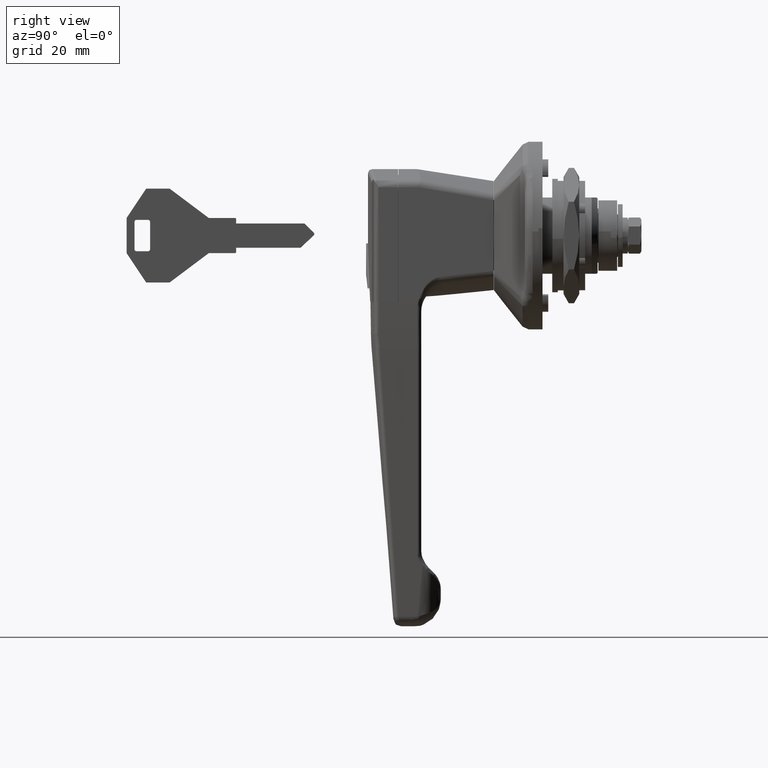
[diagram: clean part render]
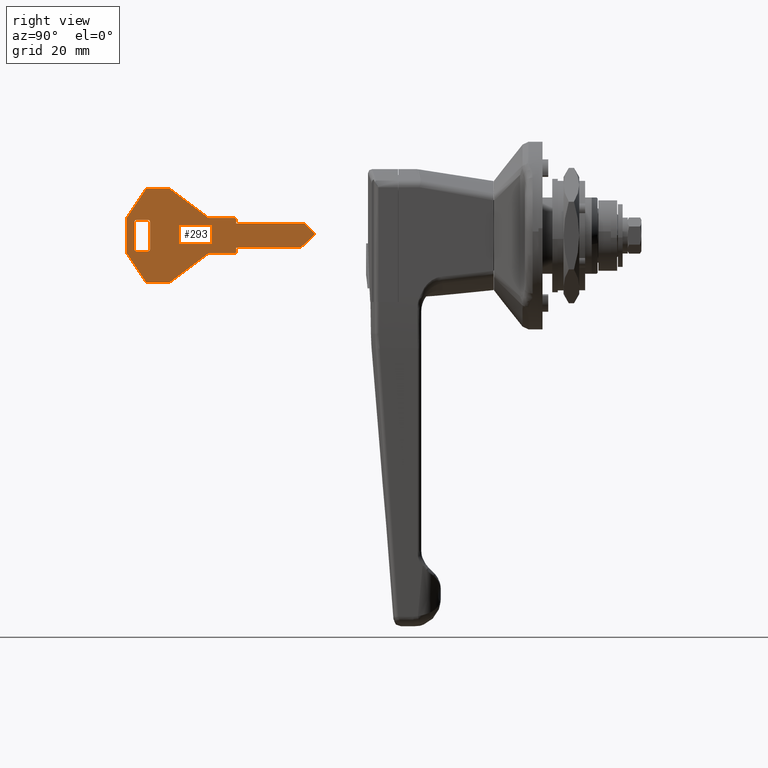
[diagram: same view with one face highlighted and labeled with its STEP entity id]
A machine part, right view. The second image highlights one B-rep face of the part: STEP entity #293.
In plain terms, the highlighted face is a freeform B-spline surface patch.
Its self-contained STEP definition (entity closure, byte-faithful):
#44=CARTESIAN_POINT('',(-103.733763654037300,-0.900000000000000,13.198799953483350));
#45=CARTESIAN_POINT('',(-50.938627942001659,-0.900000000000000,13.198799953483350));
#46=CARTESIAN_POINT('',(-103.733763654037300,-0.900000000000000,-13.198800597213509));
#47=CARTESIAN_POINT('',(-50.938627942001659,-0.900000000000000,-13.198800597213509));
#48=B_SPLINE_SURFACE_WITH_KNOTS('',1,1,((#44,#46),(#45,#47)),.UNSPECIFIED.,.F.,.F.,.U.,(2,2),(2,2),(0.0,52.795135712035659),(0.0,26.397600550696851),.UNSPECIFIED.);
#49=CARTESIAN_POINT('',(-101.336164999999990,-0.900000000000012,4.500000582522990));
#50=VERTEX_POINT('',#49);
#51=CARTESIAN_POINT('',(-96.336164569421712,-0.900000000000012,12.0));
#52=VERTEX_POINT('',#51);
#53=CARTESIAN_POINT('',(-101.336164999999990,-0.900000000000012,4.500000582522990));
#54=CARTESIAN_POINT('',(-96.336164569421712,-0.900000000000012,12.0));
#55=QUASI_UNIFORM_CURVE('',1,(#53,#54),.UNSPECIFIED.,.F.,.U.);
#56=EDGE_CURVE('',#50,#52,#55,.T.);
#57=ORIENTED_EDGE('',*,*,#56,.F.);
#58=CARTESIAN_POINT('',(-101.336164999999990,-0.900000000000012,-4.500000582522980));
#59=VERTEX_POINT('',#58);
#60=CARTESIAN_POINT('',(-101.336164999999990,-0.900000000000012,-4.500000582522980));
#61=CARTESIAN_POINT('',(-101.336164999999990,-0.900000000000012,4.500000582522990));
#62=QUASI_UNIFORM_CURVE('',1,(#60,#61),.UNSPECIFIED.,.F.,.U.);
#63=EDGE_CURVE('',#59,#50,#62,.T.);
#64=ORIENTED_EDGE('',*,*,#63,.F.);
#65=CARTESIAN_POINT('',(-96.336164569421712,-0.900000000000012,-12.0));
#66=VERTEX_POINT('',#65);
#67=CARTESIAN_POINT('',(-96.336164569421712,-0.900000000000012,-12.0));
#68=CARTESIAN_POINT('',(-101.336164999999990,-0.900000000000012,-4.500000582522980));
#69=QUASI_UNIFORM_CURVE('',1,(#67,#68),.UNSPECIFIED.,.F.,.U.);
#70=EDGE_CURVE('',#66,#59,#69,.T.);
#71=ORIENTED_EDGE('',*,*,#70,.F.);
#72=CARTESIAN_POINT('',(-90.336165352112701,-0.900000000000012,-12.0));
#73=VERTEX_POINT('',#72);
#74=CARTESIAN_POINT('',(-90.336165352112701,-0.900000000000012,-12.0));
#75=CARTESIAN_POINT('',(-96.336164569421712,-0.900000000000012,-12.0));
#76=QUASI_UNIFORM_CURVE('',1,(#74,#75),.UNSPECIFIED.,.F.,.U.);
#77=EDGE_CURVE('',#73,#66,#76,.T.);
#78=ORIENTED_EDGE('',*,*,#77,.F.);
#79=CARTESIAN_POINT('',(-80.336164999999909,-0.900000000000012,-4.500000000000000));
#80=VERTEX_POINT('',#79);
#81=CARTESIAN_POINT('',(-80.336164999999909,-0.900000000000012,-4.500000000000000));
#82=CARTESIAN_POINT('',(-90.336165352112701,-0.900000000000012,-12.0));
#83=QUASI_UNIFORM_CURVE('',1,(#81,#82),.UNSPECIFIED.,.F.,.U.);
#84=EDGE_CURVE('',#80,#73,#83,.T.);
#85=ORIENTED_EDGE('',*,*,#84,.F.);
#86=CARTESIAN_POINT('',(-73.636164999999892,-0.900000000000012,-4.500000000000000));
#87=VERTEX_POINT('',#86);
#88=CARTESIAN_POINT('',(-73.636164999999892,-0.900000000000012,-4.500000000000000));
#89=CARTESIAN_POINT('',(-80.336164999999909,-0.900000000000012,-4.500000000000000));
#90=QUASI_UNIFORM_CURVE('',1,(#88,#89),.UNSPECIFIED.,.F.,.U.);
#91=EDGE_CURVE('',#87,#80,#90,.T.);
#92=ORIENTED_EDGE('',*,*,#91,.F.);
#93=CARTESIAN_POINT('',(-73.336164999999895,-0.900000000000012,-4.200000000000045));
#94=VERTEX_POINT('',#93);
#95=CARTESIAN_POINT('',(-73.636164999999892,-0.900000000000012,-4.500000000000044));
#96=CARTESIAN_POINT('',(-73.336164999999895,-0.900000000000012,-4.500000000000044));
#97=CARTESIAN_POINT('',(-73.336164999999895,-0.900000000000012,-4.200000000000045));
#105=(BOUNDED_CURVE()B_SPLINE_CURVE(2,(#95,#96,#97),.UNSPECIFIED.,.F.,.U.)CURVE()GEOMETRIC_REPRESENTATION_ITEM()QUASI_UNIFORM_CURVE()RATIONAL_B_SPLINE_CURVE((1.0,0.707106781186547,1.0))REPRESENTATION_ITEM(''));
#106=EDGE_CURVE('',#87,#94,#105,.T.);
#107=ORIENTED_EDGE('',*,*,#106,.T.);
#108=CARTESIAN_POINT('',(-73.336164999999895,-0.900000000000012,-3.100000000000000));
#109=VERTEX_POINT('',#108);
#110=CARTESIAN_POINT('',(-73.336164999999895,-0.900000000000012,-3.100000000000000));
#111=CARTESIAN_POINT('',(-73.336164999999895,-0.900000000000012,-4.200000000000045));
#112=QUASI_UNIFORM_CURVE('',1,(#110,#111),.UNSPECIFIED.,.F.,.U.);
#113=EDGE_CURVE('',#109,#94,#112,.T.);
#114=ORIENTED_EDGE('',*,*,#113,.F.);
#115=CARTESIAN_POINT('',(-56.836164999999902,-0.900000000000012,-3.100000000000000));
#116=VERTEX_POINT('',#115);
#117=CARTESIAN_POINT('',(-56.836164999999902,-0.900000000000012,-3.100000000000000));
#118=CARTESIAN_POINT('',(-73.336164999999895,-0.900000000000012,-3.100000000000000));
#119=QUASI_UNIFORM_CURVE('',1,(#117,#118),.UNSPECIFIED.,.F.,.U.);
#120=EDGE_CURVE('',#116,#109,#119,.T.);
#121=ORIENTED_EDGE('',*,*,#120,.F.);
#122=CARTESIAN_POINT('',(-53.494070531371797,-0.900000000000012,0.035347597657623));
#123=VERTEX_POINT('',#122);
#124=CARTESIAN_POINT('',(-53.494070531371797,-0.900000000000012,0.035347597657623));
#125=CARTESIAN_POINT('',(-56.836164999999902,-0.900000000000012,-3.100000000000000));
#126=QUASI_UNIFORM_CURVE('',1,(#124,#125),.UNSPECIFIED.,.F.,.U.);
#127=EDGE_CURVE('',#123,#116,#126,.T.);
#128=ORIENTED_EDGE('',*,*,#127,.F.);
#129=CARTESIAN_POINT('',(-53.483146999999903,-0.900000000000012,0.754087999999854));
#130=VERTEX_POINT('',#129);
#131=CARTESIAN_POINT('',(-53.494070531371790,-0.900000000000012,0.035347597657615));
#132=CARTESIAN_POINT('',(-53.339444645979249,-0.900000000000012,0.180408098451601));
#133=CARTESIAN_POINT('',(-53.336222735864631,-0.900000000000012,0.392401807365908));
#134=CARTESIAN_POINT('',(-53.333000825750013,-0.900000000000012,0.604395516280215));
#135=CARTESIAN_POINT('',(-53.483146999999903,-0.900000000000012,0.754087999999854));
#143=(BOUNDED_CURVE()B_SPLINE_CURVE(2,(#131,#132,#133,#134,#135),.UNSPECIFIED.,.F.,.U.)B_SPLINE_CURVE_WITH_KNOTS((3,2,3),(0.0,0.500000000000000,1.0),.UNSPECIFIED.)CURVE()GEOMETRIC_REPRESENTATION_ITEM()RATIONAL_B_SPLINE_CURVE((1.0,0.920649968654274,1.0,0.920649968654274,1.0))REPRESENTATION_ITEM(''));
#144=EDGE_CURVE('',#123,#130,#143,.T.);
#145=ORIENTED_EDGE('',*,*,#144,.T.);
#146=CARTESIAN_POINT('',(-55.836164999999902,-0.900000000000012,3.099999999999850));
#147=VERTEX_POINT('',#146);
#148=CARTESIAN_POINT('',(-55.836164999999902,-0.900000000000012,3.099999999999850));
#149=CARTESIAN_POINT('',(-53.483146999999903,-0.900000000000012,0.754087999999854));
#150=QUASI_UNIFORM_CURVE('',1,(#148,#149),.UNSPECIFIED.,.F.,.U.);
#151=EDGE_CURVE('',#147,#130,#150,.T.);
#152=ORIENTED_EDGE('',*,*,#151,.F.);
#153=CARTESIAN_POINT('',(-73.336164999999895,-0.900000000000012,3.099999999999850));
#154=VERTEX_POINT('',#153);
#155=CARTESIAN_POINT('',(-73.336164999999895,-0.900000000000012,3.099999999999850));
#156=CARTESIAN_POINT('',(-55.836164999999902,-0.900000000000012,3.099999999999850));
#157=QUASI_UNIFORM_CURVE('',1,(#155,#156),.UNSPECIFIED.,.F.,.U.);
#158=EDGE_CURVE('',#154,#147,#157,.T.);
#159=ORIENTED_EDGE('',*,*,#158,.F.);
#160=CARTESIAN_POINT('',(-73.336164999999895,-0.900000000000012,4.199999999999760));
#161=VERTEX_POINT('',#160);
#162=CARTESIAN_POINT('',(-73.336164999999895,-0.900000000000012,4.199999999999760));
#163=CARTESIAN_POINT('',(-73.336164999999895,-0.900000000000012,3.099999999999850));
#164=QUASI_UNIFORM_CURVE('',1,(#162,#163),.UNSPECIFIED.,.F.,.U.);
#165=EDGE_CURVE('',#161,#154,#164,.T.);
#166=ORIENTED_EDGE('',*,*,#165,.F.);
#167=CARTESIAN_POINT('',(-73.636164999999892,-0.900000000000012,4.499999999999885));
#168=VERTEX_POINT('',#167);
#169=CARTESIAN_POINT('',(-73.336164999999895,-0.900000000000012,4.199999999999760));
#170=CARTESIAN_POINT('',(-73.336164999999895,-0.900000000000012,4.499999999999758));
#171=CARTESIAN_POINT('',(-73.636164999999892,-0.900000000000012,4.499999999999759));
#179=(BOUNDED_CURVE()B_SPLINE_CURVE(2,(#169,#170,#171),.UNSPECIFIED.,.F.,.U.)CURVE()GEOMETRIC_REPRESENTATION_ITEM()QUASI_UNIFORM_CURVE()RATIONAL_B_SPLINE_CURVE((1.0,0.707106781186547,1.0))REPRESENTATION_ITEM(''));
#180=EDGE_CURVE('',#161,#168,#179,.T.);
#181=ORIENTED_EDGE('',*,*,#180,.T.);
#182=CARTESIAN_POINT('',(-80.336164999999909,-0.900000000000012,4.499999999999885));
#183=VERTEX_POINT('',#182);
#184=CARTESIAN_POINT('',(-80.336164999999909,-0.900000000000012,4.499999999999885));
#185=CARTESIAN_POINT('',(-73.636164999999892,-0.900000000000012,4.499999999999885));
#186=QUASI_UNIFORM_CURVE('',1,(#184,#185),.UNSPECIFIED.,.F.,.U.);
#187=EDGE_CURVE('',#183,#168,#186,.T.);
#188=ORIENTED_EDGE('',*,*,#187,.F.);
#189=CARTESIAN_POINT('',(-90.336165352112786,-0.900000000000012,12.0));
#190=VERTEX_POINT('',#189);
#191=CARTESIAN_POINT('',(-90.336165352112786,-0.900000000000012,12.0));
#192=CARTESIAN_POINT('',(-80.336164999999909,-0.900000000000012,4.499999999999885));
#193=QUASI_UNIFORM_CURVE('',1,(#191,#192),.UNSPECIFIED.,.F.,.U.);
#194=EDGE_CURVE('',#190,#183,#193,.T.);
#195=ORIENTED_EDGE('',*,*,#194,.F.);
#196=CARTESIAN_POINT('',(-96.336164569421712,-0.900000000000012,12.0));
#197=CARTESIAN_POINT('',(-90.336165352112786,-0.900000000000012,12.0));
#198=QUASI_UNIFORM_CURVE('',1,(#196,#197),.UNSPECIFIED.,.F.,.U.);
#199=EDGE_CURVE('',#52,#190,#198,.T.);
#200=ORIENTED_EDGE('',*,*,#199,.F.);
#201=EDGE_LOOP('',(#57,#64,#71,#78,#85,#92,#107,#114,#121,#128,#145,#152,#159,#166,#181,#188,#195,#200));
#202=FACE_OUTER_BOUND('',#201,.T.);
#203=CARTESIAN_POINT('',(-98.836164999999895,-0.900000000000012,4.0));
#204=VERTEX_POINT('',#203);
#205=CARTESIAN_POINT('',(-95.836164999999909,-0.900000000000012,4.0));
#206=VERTEX_POINT('',#205);
#207=CARTESIAN_POINT('',(-98.836164999999895,-0.900000000000012,4.0));
#208=CARTESIAN_POINT('',(-95.836164999999909,-0.900000000000012,4.0));
#209=QUASI_UNIFORM_CURVE('',1,(#207,#208),.UNSPECIFIED.,.F.,.U.);
#210=EDGE_CURVE('',#204,#206,#209,.T.);
#211=ORIENTED_EDGE('',*,*,#210,.T.);
#212=CARTESIAN_POINT('',(-95.336164999999909,-0.900000000000012,3.500000000000000));
#213=VERTEX_POINT('',#212);
#214=CARTESIAN_POINT('',(-95.336164999999909,-0.900000000000012,3.500000000000000));
#215=CARTESIAN_POINT('',(-95.336164999999923,-0.900000000000012,4.000000000000000));
#216=CARTESIAN_POINT('',(-95.836164999999909,-0.900000000000012,4.0));
#224=(BOUNDED_CURVE()B_SPLINE_CURVE(2,(#214,#215,#216),.UNSPECIFIED.,.F.,.U.)CURVE()GEOMETRIC_REPRESENTATION_ITEM()QUASI_UNIFORM_CURVE()RATIONAL_B_SPLINE_CURVE((1.0,0.707106781186548,1.0))REPRESENTATION_ITEM(''));
#225=EDGE_CURVE('',#213,#206,#224,.T.);
#226=ORIENTED_EDGE('',*,*,#225,.F.);
#227=CARTESIAN_POINT('',(-95.336164999999909,-0.900000000000012,-3.500000000000000));
#228=VERTEX_POINT('',#227);
#229=CARTESIAN_POINT('',(-95.336164999999909,-0.900000000000012,3.500000000000000));
#230=CARTESIAN_POINT('',(-95.336164999999909,-0.900000000000012,-3.500000000000000));
#231=QUASI_UNIFORM_CURVE('',1,(#229,#230),.UNSPECIFIED.,.F.,.U.);
#232=EDGE_CURVE('',#213,#228,#231,.T.);
#233=ORIENTED_EDGE('',*,*,#232,.T.);
#234=CARTESIAN_POINT('',(-95.836164999999909,-0.900000000000012,-4.0));
#235=VERTEX_POINT('',#234);
#236=CARTESIAN_POINT('',(-95.836164999999909,-0.900000000000012,-4.0));
#237=CARTESIAN_POINT('',(-95.336164999999923,-0.900000000000012,-4.000000000000000));
#238=CARTESIAN_POINT('',(-95.336164999999909,-0.900000000000012,-3.500000000000000));
#246=(BOUNDED_CURVE()B_SPLINE_CURVE(2,(#236,#237,#238),.UNSPECIFIED.,.F.,.U.)CURVE()GEOMETRIC_REPRESENTATION_ITEM()QUASI_UNIFORM_CURVE()RATIONAL_B_SPLINE_CURVE((1.0,0.707106781186548,1.0))REPRESENTATION_ITEM(''));
#247=EDGE_CURVE('',#235,#228,#246,.T.);
#248=ORIENTED_EDGE('',*,*,#247,.F.);
#249=CARTESIAN_POINT('',(-98.836164999999895,-0.900000000000012,-4.000000000000116));
#250=VERTEX_POINT('',#249);
#251=CARTESIAN_POINT('',(-95.836164999999909,-0.900000000000012,-4.0));
#252=CARTESIAN_POINT('',(-98.836164999999895,-0.900000000000012,-4.000000000000116));
#253=QUASI_UNIFORM_CURVE('',1,(#251,#252),.UNSPECIFIED.,.F.,.U.);
#254=EDGE_CURVE('',#235,#250,#253,.T.);
#255=ORIENTED_EDGE('',*,*,#254,.T.);
#256=CARTESIAN_POINT('',(-99.336164999999895,-0.900000000000012,-3.500000000000000));
#257=VERTEX_POINT('',#256);
#258=CARTESIAN_POINT('',(-99.336164999999895,-0.900000000000012,-3.500000000000000));
#259=CARTESIAN_POINT('',(-99.336164999999895,-0.900000000000012,-4.000000000000000));
#260=CARTESIAN_POINT('',(-98.836164999999895,-0.900000000000012,-4.0));
#268=(BOUNDED_CURVE()B_SPLINE_CURVE(2,(#258,#259,#260),.UNSPECIFIED.,.F.,.U.)CURVE()GEOMETRIC_REPRESENTATION_ITEM()QUASI_UNIFORM_CURVE()RATIONAL_B_SPLINE_CURVE((1.0,0.707106781186548,1.0))REPRESENTATION_ITEM(''));
#269=EDGE_CURVE('',#257,#250,#268,.T.);
#270=ORIENTED_EDGE('',*,*,#269,.F.);
#271=CARTESIAN_POINT('',(-99.336164999999895,-0.900000000000012,3.500000000000000));
#272=VERTEX_POINT('',#271);
#273=CARTESIAN_POINT('',(-99.336164999999895,-0.900000000000012,-3.500000000000000));
#274=CARTESIAN_POINT('',(-99.336164999999895,-0.900000000000012,3.500000000000000));
#275=QUASI_UNIFORM_CURVE('',1,(#273,#274),.UNSPECIFIED.,.F.,.U.);
#276=EDGE_CURVE('',#257,#272,#275,.T.);
#277=ORIENTED_EDGE('',*,*,#276,.T.);
#278=CARTESIAN_POINT('',(-98.836164999999895,-0.900000000000012,4.0));
#279=CARTESIAN_POINT('',(-99.336164999999895,-0.900000000000012,4.000000000000000));
#280=CARTESIAN_POINT('',(-99.336164999999895,-0.900000000000012,3.500000000000000));
#288=(BOUNDED_CURVE()B_SPLINE_CURVE(2,(#278,#279,#280),.UNSPECIFIED.,.F.,.U.)CURVE()GEOMETRIC_REPRESENTATION_ITEM()QUASI_UNIFORM_CURVE()RATIONAL_B_SPLINE_CURVE((1.0,0.707106781186548,1.0))REPRESENTATION_ITEM(''));
#289=EDGE_CURVE('',#204,#272,#288,.T.);
#290=ORIENTED_EDGE('',*,*,#289,.F.);
#291=EDGE_LOOP('',(#211,#226,#233,#248,#255,#270,#277,#290));
#292=FACE_BOUND('',#291,.T.);
#293=ADVANCED_FACE('',(#202,#292),#48,.F.);